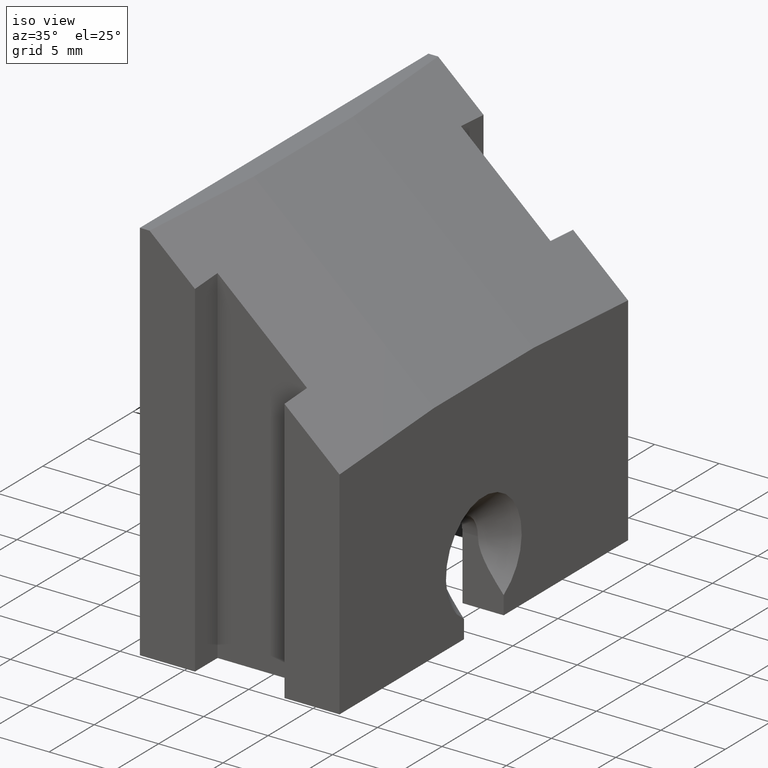
[diagram: clean part render]
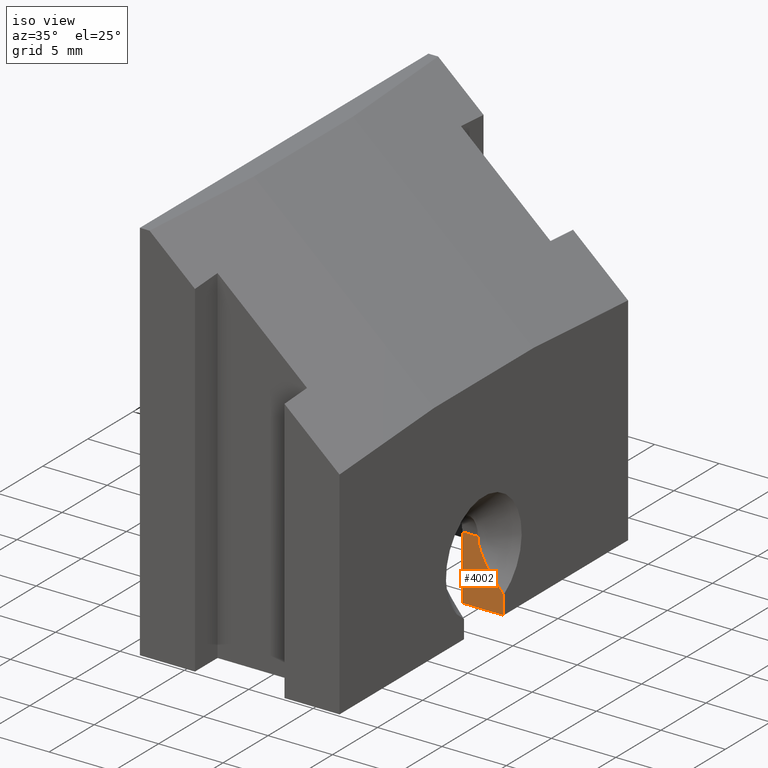
[diagram: same view with one face highlighted and labeled with its STEP entity id]
A machine part, iso view. The second image highlights one B-rep face of the part: STEP entity #4002.
In plain terms, the highlighted planar face has unit normal (0, 1, 0).
Its self-contained STEP definition (entity closure, byte-faithful):
#389 = ORIENTED_EDGE ( 'NONE', *, *, #3722, .T. ) ;
#1185 = EDGE_CURVE ( 'NONE', #2092, #4930, #2256, .T. ) ;
#1632 = CARTESIAN_POINT ( 'NONE',  ( 5.771499848068241789, 2.200000000000000622, -10.35070099242206254 ) ) ;
#1912 = EDGE_LOOP ( 'NONE', ( #389, #4531, #9997, #10806, #6282 ) ) ;
#2058 = LINE ( 'NONE', #2336, #11383 ) ;
#2092 = VERTEX_POINT ( 'NONE', #3632 ) ;
#2256 = LINE ( 'NONE', #12278, #10931 ) ;
#2336 = CARTESIAN_POINT ( 'NONE',  ( 7.750000000000000000, 2.200000000000000178, -15.00000000000000000 ) ) ;
#2390 = EDGE_CURVE ( 'NONE', #7822, #2925, #2058, .T. ) ;
#2660 = CARTESIAN_POINT ( 'NONE',  ( 5.749999999999994671, 2.200000000000000178, -10.00000000000000178 ) ) ;
#2815 = CARTESIAN_POINT ( 'NONE',  ( 4.549999999999999822, 2.200000000000000178, -15.00000000000000000 ) ) ;
#2925 = VERTEX_POINT ( 'NONE', #2815 ) ;
#3549 = EDGE_CURVE ( 'NONE', #7006, #2092, #3606, .T. ) ;
#3599 = CARTESIAN_POINT ( 'NONE',  ( 6.872674229077953001, 2.200000000000000622, -12.49584175053777635 ) ) ;
#3606 = B_SPLINE_CURVE_WITH_KNOTS ( 'NONE', 3,
 ( #9632, #6557, #11682, #3599, #9681, #8758, #7740, #3639, #5642, #1632, #4633, #2660 ),
 .UNSPECIFIED., .F., .F.,
 ( 4, 2, 2, 2, 2, 4 ),
 ( 0.004482585585460137703, 0.005526994629106662081, 0.006571403672753186459, 0.007615812716399709970, 0.008138017238222971725, 0.008660221760046233480 ),
 .UNSPECIFIED. ) ;
#3632 = CARTESIAN_POINT ( 'NONE',  ( 5.749999999999994671, 2.200000000000000178, -10.00000000000000178 ) ) ;
#3639 = CARTESIAN_POINT ( 'NONE',  ( 5.907063001687690829, 2.200000000000000178, -10.85824346781600624 ) ) ;
#3722 = EDGE_CURVE ( 'NONE', #4930, #2925, #8044, .T. ) ;
#3975 = VECTOR ( 'NONE', #4719, 1000.000000000000000 ) ;
#4002 = ADVANCED_FACE ( 'NONE', ( #4762 ), #6710, .F. ) ;
#4162 = DIRECTION ( 'NONE',  ( 0.000000000000000000, 0.000000000000000000, -1.000000000000000000 ) ) ;
#4531 = ORIENTED_EDGE ( 'NONE', *, *, #2390, .F. ) ;
#4633 = CARTESIAN_POINT ( 'NONE',  ( 5.749999999999993783, 2.199999999999999734, -10.17447666026261821 ) ) ;
#4719 = DIRECTION ( 'NONE',  ( -0.000000000000000000, -0.000000000000000000, -1.000000000000000000 ) ) ;
#4762 = FACE_OUTER_BOUND ( 'NONE', #1912, .T. ) ;
#4804 = CARTESIAN_POINT ( 'NONE',  ( 7.750000000000000000, 2.200000000000000178, -15.00000000000000000 ) ) ;
#4930 = VERTEX_POINT ( 'NONE', #9812 ) ;
#4931 = LINE ( 'NONE', #4804, #3975 ) ;
#5642 = CARTESIAN_POINT ( 'NONE',  ( 5.850878133858326002, 2.200000000000000178, -10.69424044680935815 ) ) ;
#5666 = CARTESIAN_POINT ( 'NONE',  ( 7.750000000000000000, 2.200000000000000178, -15.00000000000000000 ) ) ;
#6282 = ORIENTED_EDGE ( 'NONE', *, *, #1185, .T. ) ;
#6557 = CARTESIAN_POINT ( 'NONE',  ( 7.524119801093316795, 2.200000000000000622, -13.31253993724824980 ) ) ;
#6710 = PLANE ( 'NONE',  #10700 ) ;
#7006 = VERTEX_POINT ( 'NONE', #11535 ) ;
#7740 = CARTESIAN_POINT ( 'NONE',  ( 6.107299071504502130, 2.200000000000000178, -11.33533589991925261 ) ) ;
#7822 = VERTEX_POINT ( 'NONE', #11014 ) ;
#8044 = LINE ( 'NONE', #10183, #9943 ) ;
#8758 = CARTESIAN_POINT ( 'NONE',  ( 6.281746870756427903, 2.200000000000001066, -11.63411363687131939 ) ) ;
#8787 = DIRECTION ( 'NONE',  ( 0.000000000000000000, -0.000000000000000000, 1.000000000000000000 ) ) ;
#9104 = DIRECTION ( 'NONE',  ( -1.000000000000000000, -0.000000000000000000, -0.000000000000000000 ) ) ;
#9632 = CARTESIAN_POINT ( 'NONE',  ( 7.750000000000000000, 2.200000000000000622, -13.57770876399966653 ) ) ;
#9681 = CARTESIAN_POINT ( 'NONE',  ( 6.664674798397740574, 2.200000000000000178, -12.21564561969988816 ) ) ;
#9812 = CARTESIAN_POINT ( 'NONE',  ( 4.549999999999998934, 2.200000000000000178, -10.00000000000000178 ) ) ;
#9943 = VECTOR ( 'NONE', #4162, 1000.000000000000000 ) ;
#9997 = ORIENTED_EDGE ( 'NONE', *, *, #10128, .F. ) ;
#10128 = EDGE_CURVE ( 'NONE', #7006, #7822, #4931, .T. ) ;
#10183 = CARTESIAN_POINT ( 'NONE',  ( 4.549999999999999822, 2.200000000000000622, 15.00000000000000000 ) ) ;
#10700 = AXIS2_PLACEMENT_3D ( 'NONE', #5666, #12691, #8787 ) ;
#10806 = ORIENTED_EDGE ( 'NONE', *, *, #3549, .T. ) ;
#10931 = VECTOR ( 'NONE', #9104, 1000.000000000000000 ) ;
#11014 = CARTESIAN_POINT ( 'NONE',  ( 7.750000000000000000, 2.200000000000000178, -15.00000000000000000 ) ) ;
#11383 = VECTOR ( 'NONE', #11404, 1000.000000000000000 ) ;
#11404 = DIRECTION ( 'NONE',  ( -1.000000000000000000, -0.000000000000000000, -0.000000000000000000 ) ) ;
#11535 = CARTESIAN_POINT ( 'NONE',  ( 7.750000000000000000, 2.200000000000000622, -13.57770876399966653 ) ) ;
#11682 = CARTESIAN_POINT ( 'NONE',  ( 7.301954824841293323, 2.200000000000000178, -13.04404780166125732 ) ) ;
#12278 = CARTESIAN_POINT ( 'NONE',  ( 7.750000000000000000, 2.200000000000000178, -10.00000000000000178 ) ) ;
#12691 = DIRECTION ( 'NONE',  ( 0.000000000000000000, 1.000000000000000000, 0.000000000000000000 ) ) ;